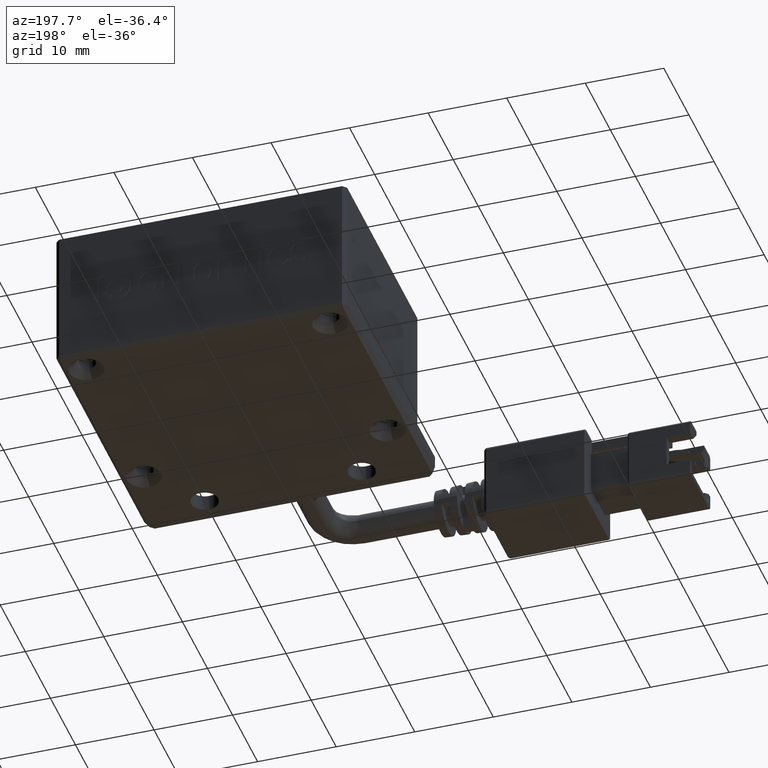
[diagram: clean part render]
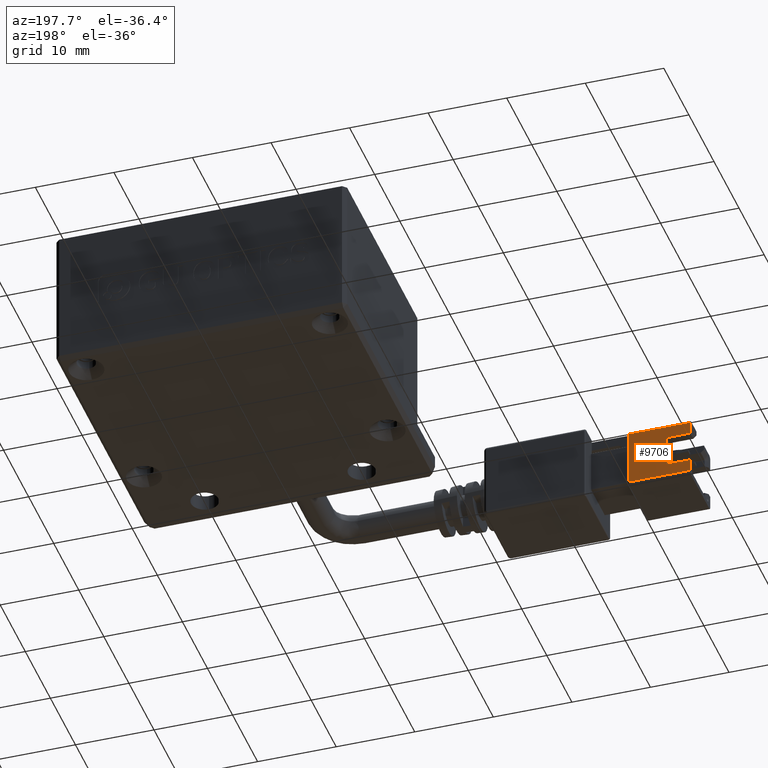
[diagram: same view with one face highlighted and labeled with its STEP entity id]
A machine part, auxiliary view. The second image highlights one B-rep face of the part: STEP entity #9706.
In plain terms, the highlighted planar face has unit normal (0, -1, -0).
Its self-contained STEP definition (entity closure, byte-faithful):
#286 = CARTESIAN_POINT ( 'NONE',  ( -46.52940053455518000, -34.05364642993505700, -1.636971808105514000E-011 ) ) ;
#363 = CARTESIAN_POINT ( 'NONE',  ( -46.52940053455518000, -34.05364642993505700, -1.636971808105514000E-011 ) ) ;
#480 = EDGE_CURVE ( 'NONE', #7804, #12548, #17439, .T. ) ;
#628 = VERTEX_POINT ( 'NONE', #20117 ) ;
#650 = CARTESIAN_POINT ( 'NONE',  ( -38.72940053455517500, -34.05364642993505700, -1.636971808105514000E-011 ) ) ;
#944 = EDGE_CURVE ( 'NONE', #12548, #6718, #3510, .T. ) ;
#1611 = DIRECTION ( 'NONE',  ( -0.0000000000000000000, 8.673617379884035500E-017, -1.000000000000000000 ) ) ;
#1639 = CARTESIAN_POINT ( 'NONE',  ( -38.72940053455517500, -34.05364642993505000, 0.3999999999836308900 ) ) ;
#1734 = VECTOR ( 'NONE', #2195, 1000.000000000000000 ) ;
#1826 = VECTOR ( 'NONE', #13169, 1000.000000000000000 ) ;
#1907 = DIRECTION ( 'NONE',  ( 0.0000000000000000000, -8.673617379884035500E-017, 1.000000000000000000 ) ) ;
#2195 = DIRECTION ( 'NONE',  ( -0.0000000000000000000, -8.673617379884035500E-017, 1.000000000000000000 ) ) ;
#2619 = CARTESIAN_POINT ( 'NONE',  ( -46.52940053455518000, -34.05364642993505700, 0.3999999999836304500 ) ) ;
#3229 = VECTOR ( 'NONE', #1611, 1000.000000000000000 ) ;
#3427 = PLANE ( 'NONE',  #17652 ) ;
#3510 = LINE ( 'NONE', #14665, #1826 ) ;
#3633 = CARTESIAN_POINT ( 'NONE',  ( -43.52940053455518000, -34.05364642993505700, 1.999999999983630600 ) ) ;
#4052 = DIRECTION ( 'NONE',  ( -1.000000000000000000, -6.162975822039154700E-033, -5.345529420184391300E-049 ) ) ;
#4131 = DIRECTION ( 'NONE',  ( 1.000000000000000000, 6.162975822039154700E-033, 5.345529420184391300E-049 ) ) ;
#4789 = LINE ( 'NONE', #10151, #12563 ) ;
#5005 = LINE ( 'NONE', #11026, #16947 ) ;
#6463 = DIRECTION ( 'NONE',  ( -0.0000000000000000000, 8.673617379884035500E-017, -1.000000000000000000 ) ) ;
#6718 = VERTEX_POINT ( 'NONE', #3633 ) ;
#7328 = VECTOR ( 'NONE', #6463, 1000.000000000000000 ) ;
#7375 = LINE ( 'NONE', #9356, #3229 ) ;
#7675 = ORIENTED_EDGE ( 'NONE', *, *, #12859, .F. ) ;
#7715 = LINE ( 'NONE', #2619, #11877 ) ;
#7730 = VERTEX_POINT ( 'NONE', #18364 ) ;
#7804 = VERTEX_POINT ( 'NONE', #9176 ) ;
#8281 = CARTESIAN_POINT ( 'NONE',  ( -46.52940053455518700, -34.05364642993505700, 1.999999999983630600 ) ) ;
#9168 = VECTOR ( 'NONE', #4131, 1000.000000000000000 ) ;
#9176 = CARTESIAN_POINT ( 'NONE',  ( -46.52940053455518700, -34.05364642993505700, 5.999999999983630900 ) ) ;
#9356 = CARTESIAN_POINT ( 'NONE',  ( -46.52940053455518000, -34.05364642993505700, -1.636971808105514000E-011 ) ) ;
#9706 = ADVANCED_FACE ( 'NONE', ( #20037 ), #3427, .F. ) ;
#10151 = CARTESIAN_POINT ( 'NONE',  ( -46.52940053455518000, -34.05364642993505700, 1.999999999983630600 ) ) ;
#11026 = CARTESIAN_POINT ( 'NONE',  ( -46.52940053455518000, -34.05364642993505700, 7.599999999983632300 ) ) ;
#11150 = ORIENTED_EDGE ( 'NONE', *, *, #13953, .F. ) ;
#11229 = DIRECTION ( 'NONE',  ( 6.162975822039154700E-033, -1.000000000000000000, -8.673617379884035500E-017 ) ) ;
#11447 = EDGE_CURVE ( 'NONE', #628, #16642, #7715, .T. ) ;
#11715 = EDGE_CURVE ( 'NONE', #7730, #18703, #5005, .T. ) ;
#11877 = VECTOR ( 'NONE', #11955, 1000.000000000000000 ) ;
#11911 = ORIENTED_EDGE ( 'NONE', *, *, #11715, .F. ) ;
#11955 = DIRECTION ( 'NONE',  ( 1.000000000000000000, 6.162975822039154700E-033, 5.345529420184391300E-049 ) ) ;
#11959 = LINE ( 'NONE', #286, #7328 ) ;
#12494 = VERTEX_POINT ( 'NONE', #8281 ) ;
#12548 = VERTEX_POINT ( 'NONE', #16105 ) ;
#12563 = VECTOR ( 'NONE', #4052, 1000.000000000000000 ) ;
#12859 = EDGE_CURVE ( 'NONE', #18703, #7804, #7375, .T. ) ;
#12939 = EDGE_LOOP ( 'NONE', ( #14808, #15065, #11150, #16358, #16316, #18771, #7675, #11911 ) ) ;
#13169 = DIRECTION ( 'NONE',  ( -0.0000000000000000000, 8.673617379884035500E-017, -1.000000000000000000 ) ) ;
#13476 = EDGE_CURVE ( 'NONE', #16642, #7730, #14158, .T. ) ;
#13953 = EDGE_CURVE ( 'NONE', #12494, #628, #11959, .T. ) ;
#14158 = LINE ( 'NONE', #650, #1734 ) ;
#14176 = EDGE_CURVE ( 'NONE', #6718, #12494, #4789, .T. ) ;
#14665 = CARTESIAN_POINT ( 'NONE',  ( -43.52940053455517200, -34.05364642993505700, -1.636971808105514000E-011 ) ) ;
#14808 = ORIENTED_EDGE ( 'NONE', *, *, #13476, .F. ) ;
#15065 = ORIENTED_EDGE ( 'NONE', *, *, #11447, .F. ) ;
#16105 = CARTESIAN_POINT ( 'NONE',  ( -43.52940053455518000, -34.05364642993505700, 5.999999999983630900 ) ) ;
#16316 = ORIENTED_EDGE ( 'NONE', *, *, #944, .F. ) ;
#16358 = ORIENTED_EDGE ( 'NONE', *, *, #14176, .F. ) ;
#16642 = VERTEX_POINT ( 'NONE', #1639 ) ;
#16947 = VECTOR ( 'NONE', #18764, 1000.000000000000000 ) ;
#17439 = LINE ( 'NONE', #19592, #9168 ) ;
#17652 = AXIS2_PLACEMENT_3D ( 'NONE', #363, #11229, #1907 ) ;
#18164 = CARTESIAN_POINT ( 'NONE',  ( -46.52940053455518000, -34.05364642993505700, 7.599999999983632300 ) ) ;
#18364 = CARTESIAN_POINT ( 'NONE',  ( -38.72940053455517500, -34.05364642993505000, 7.599999999983632300 ) ) ;
#18703 = VERTEX_POINT ( 'NONE', #18164 ) ;
#18764 = DIRECTION ( 'NONE',  ( -1.000000000000000000, -6.162975822039154700E-033, -5.345529420184391300E-049 ) ) ;
#18771 = ORIENTED_EDGE ( 'NONE', *, *, #480, .F. ) ;
#19592 = CARTESIAN_POINT ( 'NONE',  ( -46.52940053455518000, -34.05364642993505700, 5.999999999983630900 ) ) ;
#20037 = FACE_OUTER_BOUND ( 'NONE', #12939, .T. ) ;
#20117 = CARTESIAN_POINT ( 'NONE',  ( -46.52940053455518000, -34.05364642993505700, 0.3999999999836304500 ) ) ;